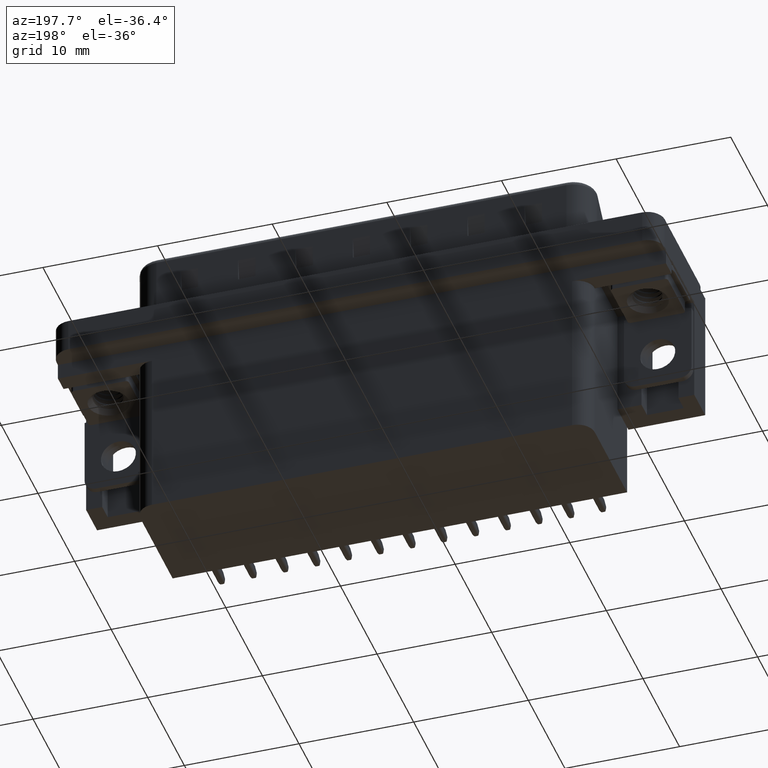
[diagram: clean part render]
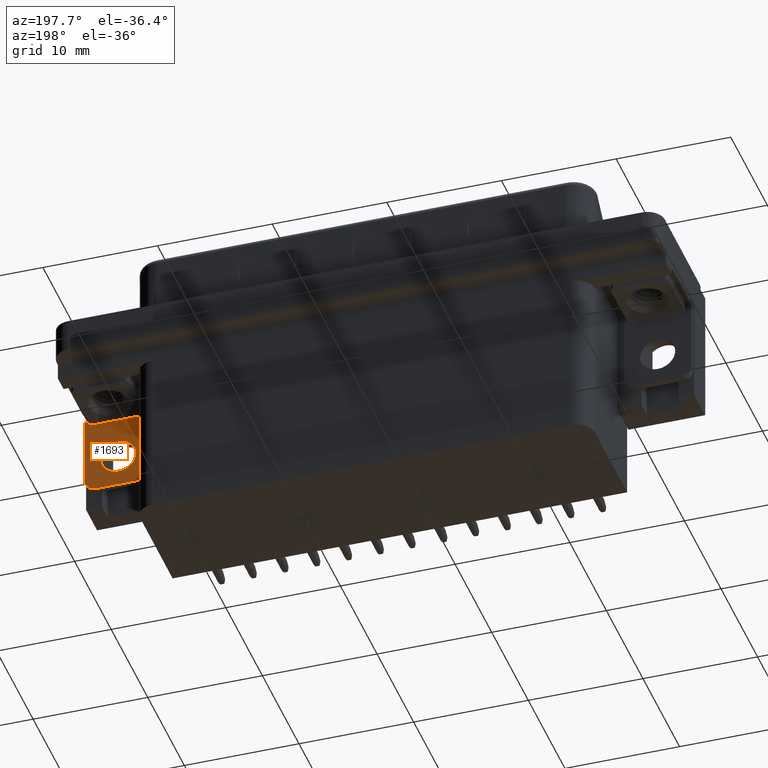
[diagram: same view with one face highlighted and labeled with its STEP entity id]
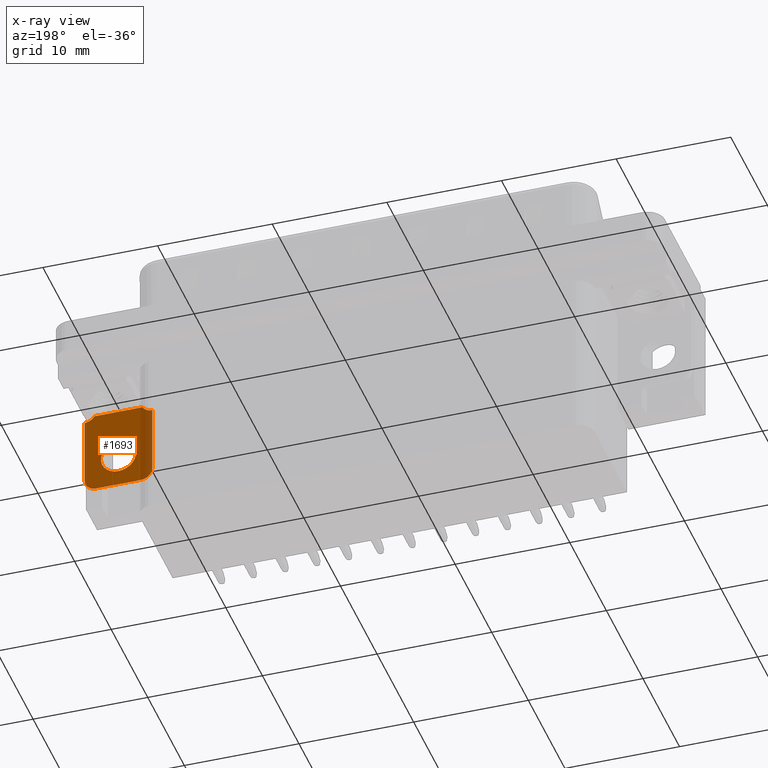
[diagram: x-ray of the same camera — body ghosted, the highlighted face saturated]
A machine part, auxiliary view. The second image highlights one B-rep face of the part: STEP entity #1693.
The next image is the same camera in x-ray: the body ghosted, the highlighted face saturated — about 22% of this face is hidden behind the body in this view.
In plain terms, the highlighted planar face has unit normal (0, -1, 0).
Its self-contained STEP definition (entity closure, byte-faithful):
#93 = ORIENTED_EDGE ( 'NONE', *, *, #12070, .F. ) ;
#598 = CARTESIAN_POINT ( 'NONE',  ( -5.000000000000004400, -2.700000000000000200, -10.78008478075999900 ) ) ;
#670 = VERTEX_POINT ( 'NONE', #18642 ) ;
#701 = DIRECTION ( 'NONE',  ( -1.000000000000000000, 0.0000000000000000000, 0.0000000000000000000 ) ) ;
#965 = ORIENTED_EDGE ( 'NONE', *, *, #12561, .F. ) ;
#1039 = VECTOR ( 'NONE', #5621, 1000.000000000000000 ) ;
#1319 = FACE_OUTER_BOUND ( 'NONE', #4750, .T. ) ;
#1651 = DIRECTION ( 'NONE',  ( -0.0000000000000000000, -0.0000000000000000000, -1.000000000000000000 ) ) ;
#1676 = ORIENTED_EDGE ( 'NONE', *, *, #12454, .F. ) ;
#1693 = ADVANCED_FACE ( 'NONE', ( #19212, #1319 ), #2728, .F. ) ;
#1717 = CARTESIAN_POINT ( 'NONE',  ( -2.950000000000001100, -2.700000000000000200, -2.500084780762000100 ) ) ;
#2024 = CARTESIAN_POINT ( 'NONE',  ( -5.000000000000004400, -2.700000000000000200, -3.000084780762000100 ) ) ;
#2131 = DIRECTION ( 'NONE',  ( 0.0000000000000000000, 1.000000000000000000, 0.0000000000000000000 ) ) ;
#2407 = VECTOR ( 'NONE', #4235, 1000.000000000000000 ) ;
#2673 = VECTOR ( 'NONE', #7102, 1000.000000000000000 ) ;
#2679 = CARTESIAN_POINT ( 'NONE',  ( -1.950000000000000400, -2.700000000000000200, -10.48008478076200100 ) ) ;
#2728 = PLANE ( 'NONE',  #7960 ) ;
#3084 = DIRECTION ( 'NONE',  ( 1.000000000000000000, 0.0000000000000000000, 0.0000000000000000000 ) ) ;
#3224 = LINE ( 'NONE', #5245, #2673 ) ;
#3276 = CARTESIAN_POINT ( 'NONE',  ( 0.0000000000000000000, -2.700000000000000200, -6.074999999999998400 ) ) ;
#3372 = ORIENTED_EDGE ( 'NONE', *, *, #12657, .F. ) ;
#3465 = DIRECTION ( 'NONE',  ( -1.000000000000000000, 0.0000000000000000000, 0.0000000000000000000 ) ) ;
#3768 = DIRECTION ( 'NONE',  ( 1.000000000000000000, 0.0000000000000000000, 0.0000000000000000000 ) ) ;
#3936 = AXIS2_PLACEMENT_3D ( 'NONE', #6483, #18551, #8260 ) ;
#4192 = VERTEX_POINT ( 'NONE', #18820 ) ;
#4235 = DIRECTION ( 'NONE',  ( 0.0000000000000000000, 0.0000000000000000000, 1.000000000000000000 ) ) ;
#4728 = VERTEX_POINT ( 'NONE', #5867 ) ;
#4750 = EDGE_LOOP ( 'NONE', ( #10593, #1676, #10085, #17170, #965, #22289, #3372, #7068, #5174, #18797 ) ) ;
#5174 = ORIENTED_EDGE ( 'NONE', *, *, #12792, .F. ) ;
#5245 = CARTESIAN_POINT ( 'NONE',  ( -2.149999999999999000, -2.700000000000000200, -10.78008478075999900 ) ) ;
#5452 = CIRCLE ( 'NONE', #14500, 1.000000000000000000 ) ;
#5621 = DIRECTION ( 'NONE',  ( 0.0000000000000000000, 0.0000000000000000000, 1.000000000000000000 ) ) ;
#5712 = VECTOR ( 'NONE', #3768, 1000.000000000000000 ) ;
#5867 = CARTESIAN_POINT ( 'NONE',  ( 2.150000000000158900, -2.700000000000000200, -3.100084780761879900 ) ) ;
#6467 = VERTEX_POINT ( 'NONE', #10516 ) ;
#6483 = CARTESIAN_POINT ( 'NONE',  ( 0.0000000000000000000, -2.700000000000000200, -7.599999999999998800 ) ) ;
#6532 = CIRCLE ( 'NONE', #13630, 1.000000000000000000 ) ;
#6824 = LINE ( 'NONE', #2024, #5712 ) ;
#7068 = ORIENTED_EDGE ( 'NONE', *, *, #12754, .T. ) ;
#7102 = DIRECTION ( 'NONE',  ( -0.0000000000000000000, -0.0000000000000000000, -1.000000000000000000 ) ) ;
#7770 = CARTESIAN_POINT ( 'NONE',  ( 2.149999999999999000, -2.699999999999999700, -3.000084780762000100 ) ) ;
#7960 = AXIS2_PLACEMENT_3D ( 'NONE', #598, #9974, #3084 ) ;
#7993 = CARTESIAN_POINT ( 'NONE',  ( 1.950000000000000400, -2.700000000000000200, -9.480084780762002300 ) ) ;
#8260 = DIRECTION ( 'NONE',  ( 0.0000000000000000000, 0.0000000000000000000, 1.000000000000000000 ) ) ;
#8544 = DIRECTION ( 'NONE',  ( 0.0000000000000000000, -1.000000000000000000, 0.0000000000000000000 ) ) ;
#8678 = CARTESIAN_POINT ( 'NONE',  ( 1.867586368699712800E-016, -2.700000000000000200, -9.125000000000000000 ) ) ;
#9795 = DIRECTION ( 'NONE',  ( -1.000000000000000000, 0.0000000000000000000, 0.0000000000000000000 ) ) ;
#9863 = LINE ( 'NONE', #17744, #1039 ) ;
#9974 = DIRECTION ( 'NONE',  ( 0.0000000000000000000, -1.000000000000000000, 0.0000000000000000000 ) ) ;
#10085 = ORIENTED_EDGE ( 'NONE', *, *, #12493, .F. ) ;
#10140 = DIRECTION ( 'NONE',  ( 1.000000000000000000, 0.0000000000000000000, 0.0000000000000000000 ) ) ;
#10516 = CARTESIAN_POINT ( 'NONE',  ( 2.950000000001000300, -2.700000000000000200, -3.500084780762000600 ) ) ;
#10593 = ORIENTED_EDGE ( 'NONE', *, *, #12383, .F. ) ;
#11224 = DIRECTION ( 'NONE',  ( -0.0000000000000000000, -1.000000000000000000, -0.0000000000000000000 ) ) ;
#11601 = EDGE_LOOP ( 'NONE', ( #18522, #93 ) ) ;
#11759 = CIRCLE ( 'NONE', #3936, 1.525000000000000400 ) ;
#12008 = CARTESIAN_POINT ( 'NONE',  ( 2.950000000000494000, -2.700000000000000200, -9.480084780762002300 ) ) ;
#12070 = EDGE_CURVE ( 'NONE', #13111, #15465, #14748, .T. ) ;
#12119 = CARTESIAN_POINT ( 'NONE',  ( -2.950000000000001100, -2.700000000000000200, -10.78008478075999900 ) ) ;
#12353 = EDGE_CURVE ( 'NONE', #15465, #13111, #11759, .T. ) ;
#12383 = EDGE_CURVE ( 'NONE', #12842, #13078, #19749, .T. ) ;
#12454 = EDGE_CURVE ( 'NONE', #670, #12842, #5452, .T. ) ;
#12493 = EDGE_CURVE ( 'NONE', #4192, #670, #13116, .T. ) ;
#12519 = EDGE_CURVE ( 'NONE', #4192, #20118, #21615, .T. ) ;
#12561 = EDGE_CURVE ( 'NONE', #15501, #20118, #3224, .T. ) ;
#12614 = CARTESIAN_POINT ( 'NONE',  ( 0.0000000000000000000, -2.700000000000000200, -7.599999999999998800 ) ) ;
#12624 = EDGE_CURVE ( 'NONE', #15501, #17901, #6824, .T. ) ;
#12657 = EDGE_CURVE ( 'NONE', #4728, #17901, #9863, .T. ) ;
#12754 = EDGE_CURVE ( 'NONE', #4728, #6467, #16866, .T. ) ;
#12792 = EDGE_CURVE ( 'NONE', #14224, #6467, #16310, .T. ) ;
#12831 = EDGE_CURVE ( 'NONE', #13078, #14224, #6532, .T. ) ;
#12842 = VERTEX_POINT ( 'NONE', #2679 ) ;
#13062 = CARTESIAN_POINT ( 'NONE',  ( -2.149999999999999000, -2.700000000000000200, -3.100084780761999800 ) ) ;
#13078 = VERTEX_POINT ( 'NONE', #22304 ) ;
#13111 = VERTEX_POINT ( 'NONE', #8678 ) ;
#13116 = LINE ( 'NONE', #12119, #17658 ) ;
#13516 = CARTESIAN_POINT ( 'NONE',  ( -2.950000000000001100, -2.700000000000000200, -10.48008478076200100 ) ) ;
#13630 = AXIS2_PLACEMENT_3D ( 'NONE', #7993, #20010, #9795 ) ;
#13964 = DIRECTION ( 'NONE',  ( -0.0000000000000000000, -1.000000000000000000, -0.0000000000000000000 ) ) ;
#14224 = VERTEX_POINT ( 'NONE', #12008 ) ;
#14359 = DIRECTION ( 'NONE',  ( 0.0000000000000000000, 0.0000000000000000000, 1.000000000000000000 ) ) ;
#14500 = AXIS2_PLACEMENT_3D ( 'NONE', #18842, #8544, #20538 ) ;
#14748 = CIRCLE ( 'NONE', #21011, 1.525000000000000400 ) ;
#15465 = VERTEX_POINT ( 'NONE', #3276 ) ;
#15501 = VERTEX_POINT ( 'NONE', #15568 ) ;
#15568 = CARTESIAN_POINT ( 'NONE',  ( -2.149999999999999000, -2.699999999999999700, -3.000084780762000100 ) ) ;
#16310 = LINE ( 'NONE', #16412, #2407 ) ;
#16412 = CARTESIAN_POINT ( 'NONE',  ( 2.950000000001000300, -2.700000000000000200, -10.78008478075999900 ) ) ;
#16866 = CIRCLE ( 'NONE', #20875, 1.000000000000000000 ) ;
#17170 = ORIENTED_EDGE ( 'NONE', *, *, #12519, .T. ) ;
#17658 = VECTOR ( 'NONE', #1651, 1000.000000000000000 ) ;
#17744 = CARTESIAN_POINT ( 'NONE',  ( 2.149999999999999000, -2.700000000000000200, -10.78008478075999900 ) ) ;
#17901 = VERTEX_POINT ( 'NONE', #7770 ) ;
#18522 = ORIENTED_EDGE ( 'NONE', *, *, #12353, .F. ) ;
#18551 = DIRECTION ( 'NONE',  ( 0.0000000000000000000, 1.000000000000000000, 0.0000000000000000000 ) ) ;
#18642 = CARTESIAN_POINT ( 'NONE',  ( -2.950000000000001100, -2.700000000000000200, -9.480084780762002300 ) ) ;
#18797 = ORIENTED_EDGE ( 'NONE', *, *, #12831, .F. ) ;
#18820 = CARTESIAN_POINT ( 'NONE',  ( -2.950000000000001100, -2.700000000000000200, -3.500084780762000600 ) ) ;
#18842 = CARTESIAN_POINT ( 'NONE',  ( -1.950000000000000400, -2.700000000000000200, -9.480084780762002300 ) ) ;
#19212 = FACE_BOUND ( 'NONE', #11601, .T. ) ;
#19225 = VECTOR ( 'NONE', #10140, 1000.000000000000000 ) ;
#19749 = LINE ( 'NONE', #13516, #19225 ) ;
#20010 = DIRECTION ( 'NONE',  ( -0.0000000000000000000, -1.000000000000000000, -0.0000000000000000000 ) ) ;
#20118 = VERTEX_POINT ( 'NONE', #13062 ) ;
#20538 = DIRECTION ( 'NONE',  ( 1.000000000000000000, 0.0000000000000000000, 0.0000000000000000000 ) ) ;
#20875 = AXIS2_PLACEMENT_3D ( 'NONE', #21433, #11224, #701 ) ;
#21011 = AXIS2_PLACEMENT_3D ( 'NONE', #12614, #2131, #14359 ) ;
#21178 = AXIS2_PLACEMENT_3D ( 'NONE', #1717, #13964, #3465 ) ;
#21433 = CARTESIAN_POINT ( 'NONE',  ( 2.950000000001000300, -2.700000000000000200, -2.500084780762000100 ) ) ;
#21615 = CIRCLE ( 'NONE', #21178, 1.000000000000000000 ) ;
#22289 = ORIENTED_EDGE ( 'NONE', *, *, #12624, .T. ) ;
#22304 = CARTESIAN_POINT ( 'NONE',  ( 1.950000000000000400, -2.700000000000000200, -10.48008478076200100 ) ) ;